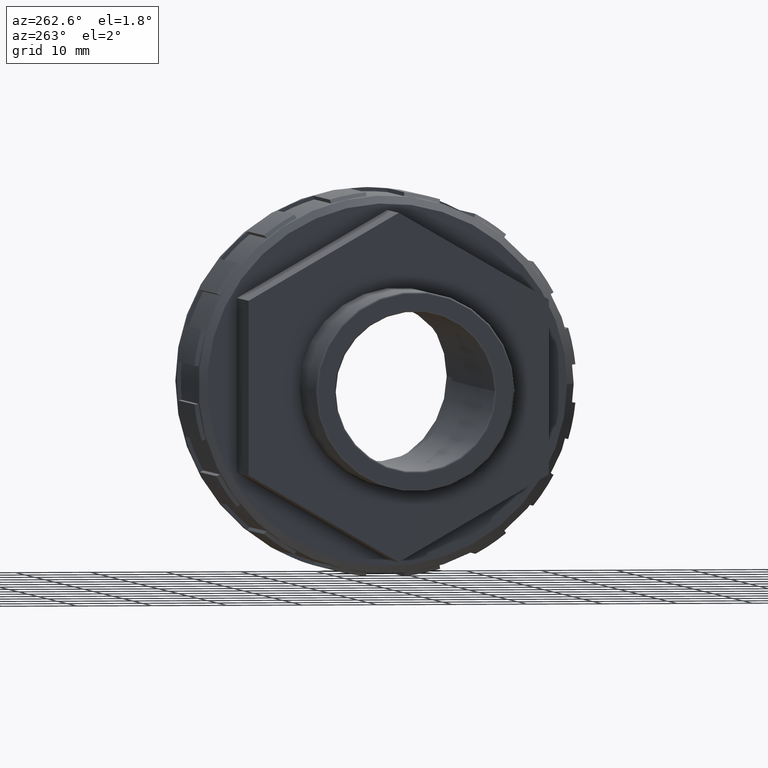
[diagram: clean part render]
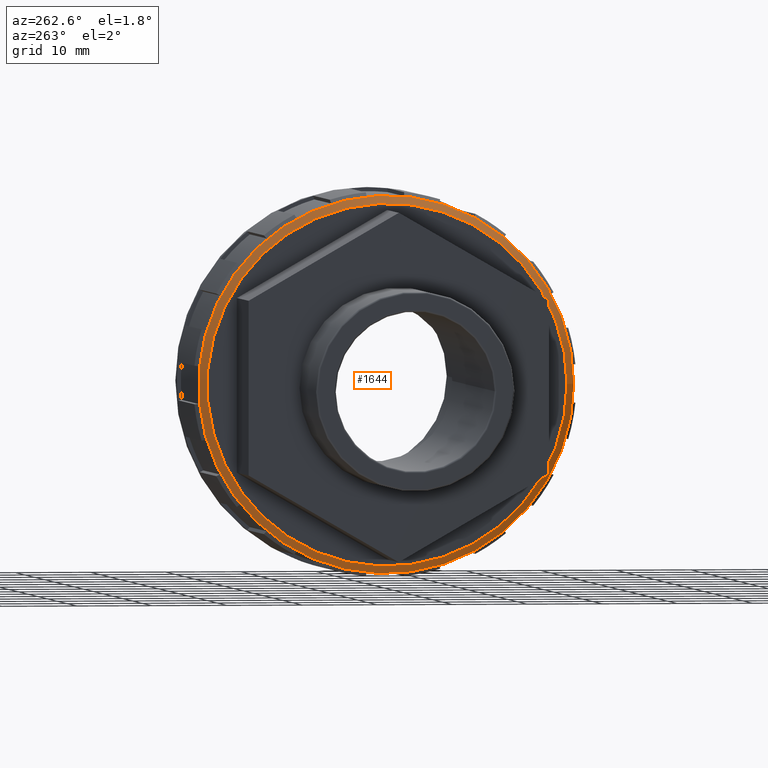
[diagram: same view with one face highlighted and labeled with its STEP entity id]
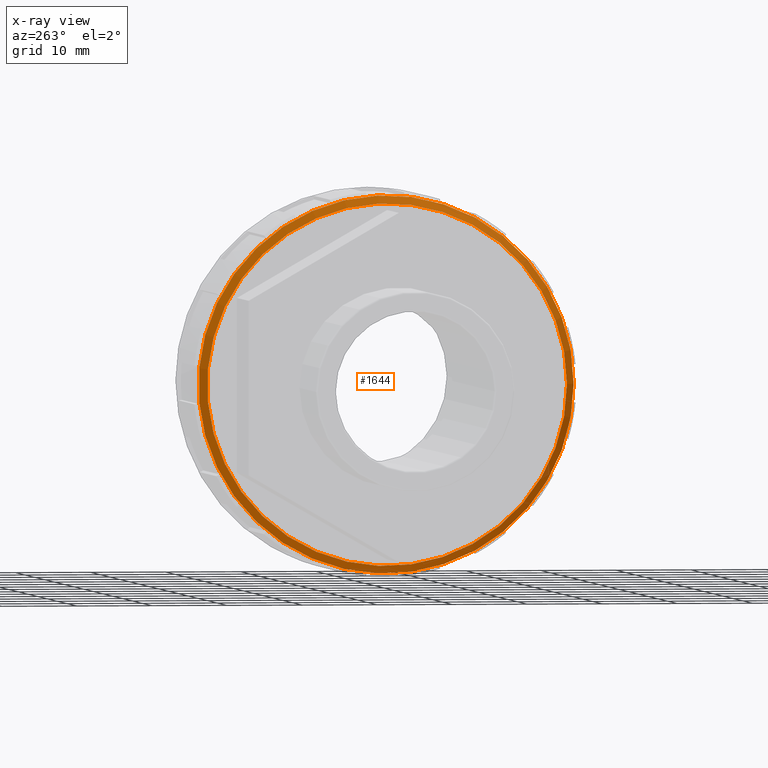
[diagram: x-ray of the same camera — body ghosted, the highlighted face saturated]
A machine part, auxiliary view. The second image highlights one B-rep face of the part: STEP entity #1644.
The next image is the same camera in x-ray: the body ghosted, the highlighted face saturated — about 1% of this face is hidden behind the body in this view.
In plain terms, the highlighted conical surface has half-angle 45 deg.
Its self-contained STEP definition (entity closure, byte-faithful):
#36=CONICAL_SURFACE('',#1816,24.48,45.);
#50=FACE_BOUND('',#340,.T.);
#145=CIRCLE('',#1817,24.99);
#146=CIRCLE('',#1818,23.97);
#234=FACE_OUTER_BOUND('',#339,.T.);
#339=EDGE_LOOP('',(#1408));
#340=EDGE_LOOP('',(#1409));
#803=VERTEX_POINT('',#2794);
#804=VERTEX_POINT('',#2796);
#1033=EDGE_CURVE('',#803,#803,#145,.T.);
#1034=EDGE_CURVE('',#804,#804,#146,.T.);
#1408=ORIENTED_EDGE('',*,*,#1033,.T.);
#1409=ORIENTED_EDGE('',*,*,#1034,.T.);
#1644=ADVANCED_FACE('',(#234,#50),#36,.T.);
#1816=AXIS2_PLACEMENT_3D('',#2793,#2301,#2302);
#1817=AXIS2_PLACEMENT_3D('',#2795,#2303,#2304);
#1818=AXIS2_PLACEMENT_3D('',#2797,#2305,#2306);
#2301=DIRECTION('center_axis',(1.,4.89858719658941E-16,0.));
#2302=DIRECTION('ref_axis',(-4.97007407839304E-16,1.,0.));
#2303=DIRECTION('center_axis',(-1.,-4.89858719658941E-16,0.));
#2304=DIRECTION('ref_axis',(-5.03864312828633E-16,1.,0.));
#2305=DIRECTION('center_axis',(1.,4.89858719658941E-16,0.));
#2306=DIRECTION('ref_axis',(-4.89858719658941E-16,1.,0.));
#2793=CARTESIAN_POINT('Origin',(-2.64000000000001,4.61263216898851E-15,
0.));
#2794=CARTESIAN_POINT('',(-2.13,-24.99,3.06039235106924E-15));
#2795=CARTESIAN_POINT('Origin',(-2.13000000000001,4.86246011601456E-15,
0.));
#2796=CARTESIAN_POINT('',(-3.14999999999999,-23.97,-2.93547837755621E-15));
#2797=CARTESIAN_POINT('Origin',(-3.15,4.36280422196245E-15,0.));